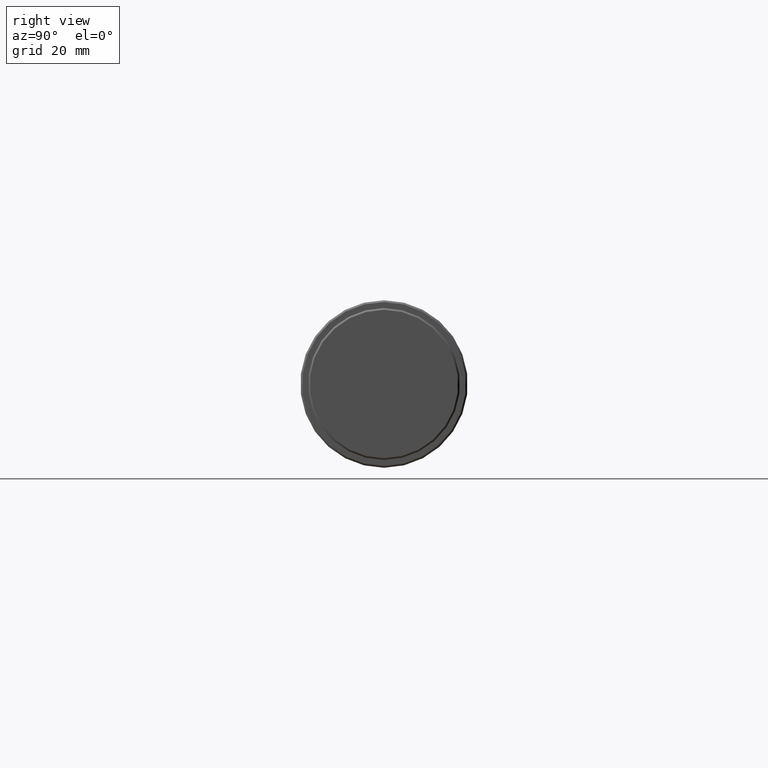
[diagram: clean part render]
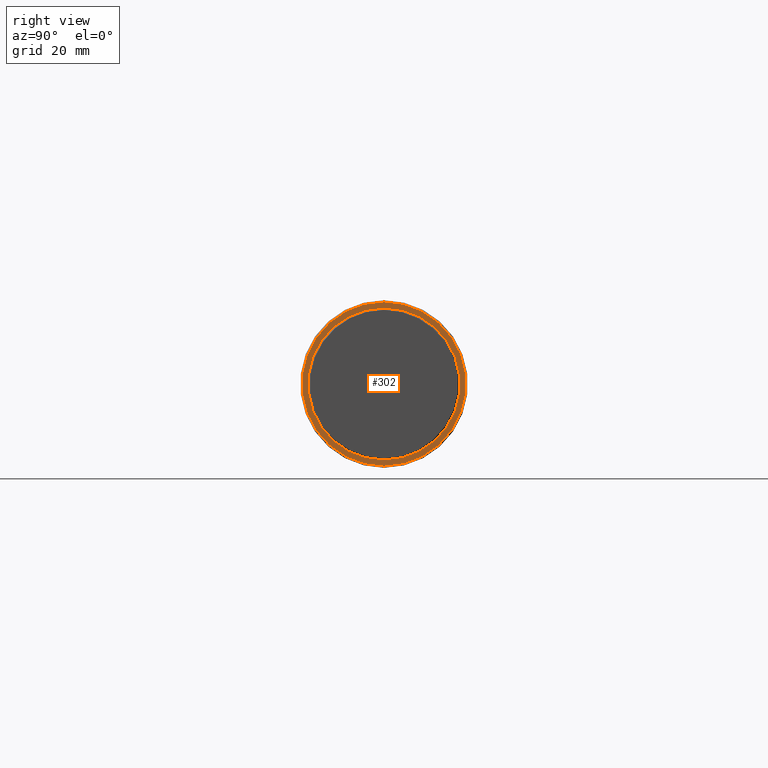
[diagram: same view with one face highlighted and labeled with its STEP entity id]
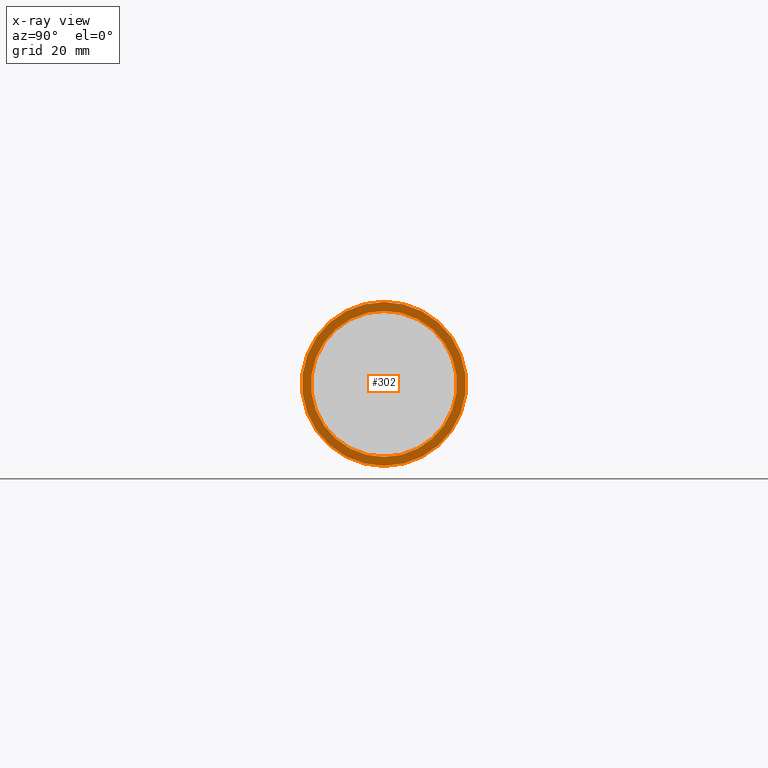
[diagram: x-ray of the same camera — body ghosted, the highlighted face saturated]
A machine part, right view. The second image highlights one B-rep face of the part: STEP entity #302.
The next image is the same camera in x-ray: the body ghosted, the highlighted face saturated — about 0% of this face is hidden behind the body in this view.
In plain terms, the highlighted planar face has unit normal (-1, 0, -0).
Its self-contained STEP definition (entity closure, byte-faithful):
#28 = VERTEX_POINT ( 'NONE', #167 ) ;
#39 = DIRECTION ( 'NONE',  ( -1.000000000000000000, -0.0000000000000000000, -0.0000000000000000000 ) ) ;
#69 = EDGE_CURVE ( 'NONE', #531, #648, #359, .T. ) ;
#104 = FACE_OUTER_BOUND ( 'NONE', #739, .T. ) ;
#123 = AXIS2_PLACEMENT_3D ( 'NONE', #150, #392, #344 ) ;
#127 = CIRCLE ( 'NONE', #779, 13.70000000000000100 ) ;
#150 = CARTESIAN_POINT ( 'NONE',  ( 111.7000000000000000, 0.0000000000000000000, 0.0000000000000000000 ) ) ;
#159 = DIRECTION ( 'NONE',  ( 0.0000000000000000000, 0.0000000000000000000, 1.000000000000000000 ) ) ;
#167 = CARTESIAN_POINT ( 'NONE',  ( 111.7000000000000000, 0.0000000000000000000, 13.70000000000000100 ) ) ;
#170 = DIRECTION ( 'NONE',  ( 0.0000000000000000000, 0.0000000000000000000, 1.000000000000000000 ) ) ;
#177 = ORIENTED_EDGE ( 'NONE', *, *, #426, .T. ) ;
#198 = ORIENTED_EDGE ( 'NONE', *, *, #313, .F. ) ;
#226 = CARTESIAN_POINT ( 'NONE',  ( 111.7000000000000000, 0.0000000000000000000, 12.20000000000000100 ) ) ;
#275 = ORIENTED_EDGE ( 'NONE', *, *, #490, .F. ) ;
#302 = ADVANCED_FACE ( 'NONE', ( #104, #314 ), #706, .F. ) ;
#313 = EDGE_CURVE ( 'NONE', #487, #28, #454, .T. ) ;
#314 = FACE_BOUND ( 'NONE', #361, .T. ) ;
#344 = DIRECTION ( 'NONE',  ( 0.0000000000000000000, 0.0000000000000000000, 1.000000000000000000 ) ) ;
#345 = DIRECTION ( 'NONE',  ( -1.000000000000000000, -0.0000000000000000000, -0.0000000000000000000 ) ) ;
#356 = CARTESIAN_POINT ( 'NONE',  ( 111.7000000000000000, 0.0000000000000000000, 0.0000000000000000000 ) ) ;
#359 = CIRCLE ( 'NONE', #811, 12.20000000000000100 ) ;
#361 = EDGE_LOOP ( 'NONE', ( #762, #177 ) ) ;
#392 = DIRECTION ( 'NONE',  ( -1.000000000000000000, -0.0000000000000000000, -0.0000000000000000000 ) ) ;
#426 = EDGE_CURVE ( 'NONE', #648, #531, #529, .T. ) ;
#454 = CIRCLE ( 'NONE', #123, 13.70000000000000100 ) ;
#461 = AXIS2_PLACEMENT_3D ( 'NONE', #481, #557, #611 ) ;
#481 = CARTESIAN_POINT ( 'NONE',  ( 111.7000000000000000, 0.0000000000000000000, 0.0000000000000000000 ) ) ;
#487 = VERTEX_POINT ( 'NONE', #723 ) ;
#490 = EDGE_CURVE ( 'NONE', #28, #487, #127, .T. ) ;
#529 = CIRCLE ( 'NONE', #461, 12.20000000000000100 ) ;
#531 = VERTEX_POINT ( 'NONE', #226 ) ;
#555 = AXIS2_PLACEMENT_3D ( 'NONE', #774, #595, #769 ) ;
#557 = DIRECTION ( 'NONE',  ( -1.000000000000000000, -0.0000000000000000000, -0.0000000000000000000 ) ) ;
#595 = DIRECTION ( 'NONE',  ( -1.000000000000000000, 0.0000000000000000000, -0.0000000000000000000 ) ) ;
#611 = DIRECTION ( 'NONE',  ( 0.0000000000000000000, 0.0000000000000000000, 1.000000000000000000 ) ) ;
#648 = VERTEX_POINT ( 'NONE', #737 ) ;
#706 = PLANE ( 'NONE',  #555 ) ;
#723 = CARTESIAN_POINT ( 'NONE',  ( 111.7000000000000000, 1.696135816819084200E-015, -13.70000000000000100 ) ) ;
#737 = CARTESIAN_POINT ( 'NONE',  ( 111.7000000000000000, 1.494069094959771100E-015, -12.20000000000000100 ) ) ;
#739 = EDGE_LOOP ( 'NONE', ( #275, #198 ) ) ;
#762 = ORIENTED_EDGE ( 'NONE', *, *, #69, .T. ) ;
#769 = DIRECTION ( 'NONE',  ( -0.0000000000000000000, 0.0000000000000000000, 1.000000000000000000 ) ) ;
#774 = CARTESIAN_POINT ( 'NONE',  ( 111.7000000000000000, 13.70000000000000100, 0.0000000000000000000 ) ) ;
#779 = AXIS2_PLACEMENT_3D ( 'NONE', #356, #39, #159 ) ;
#791 = CARTESIAN_POINT ( 'NONE',  ( 111.7000000000000000, 0.0000000000000000000, 0.0000000000000000000 ) ) ;
#811 = AXIS2_PLACEMENT_3D ( 'NONE', #791, #345, #170 ) ;